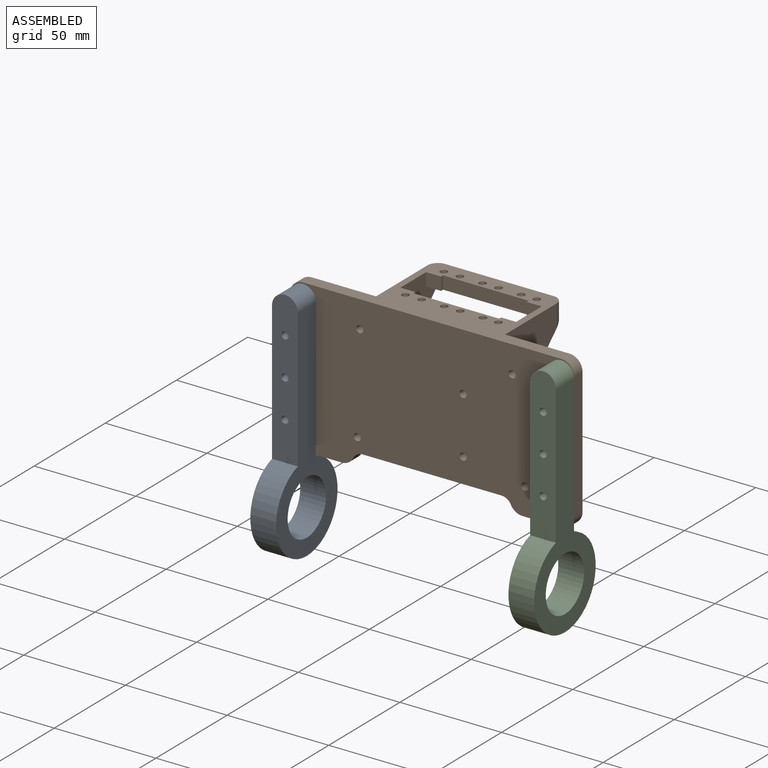
[diagram: assembled view]
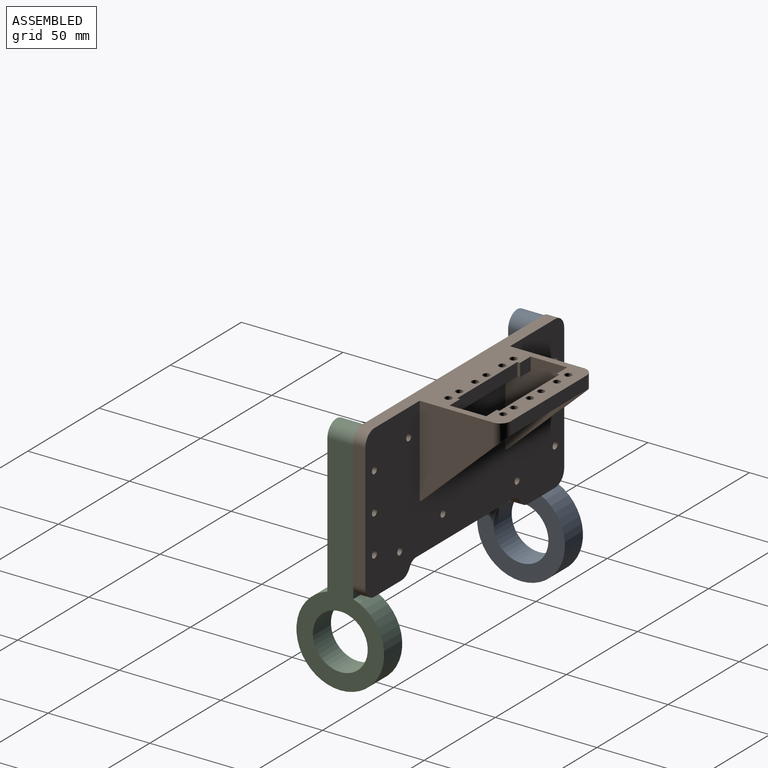
[diagram: assembled view, second angle]
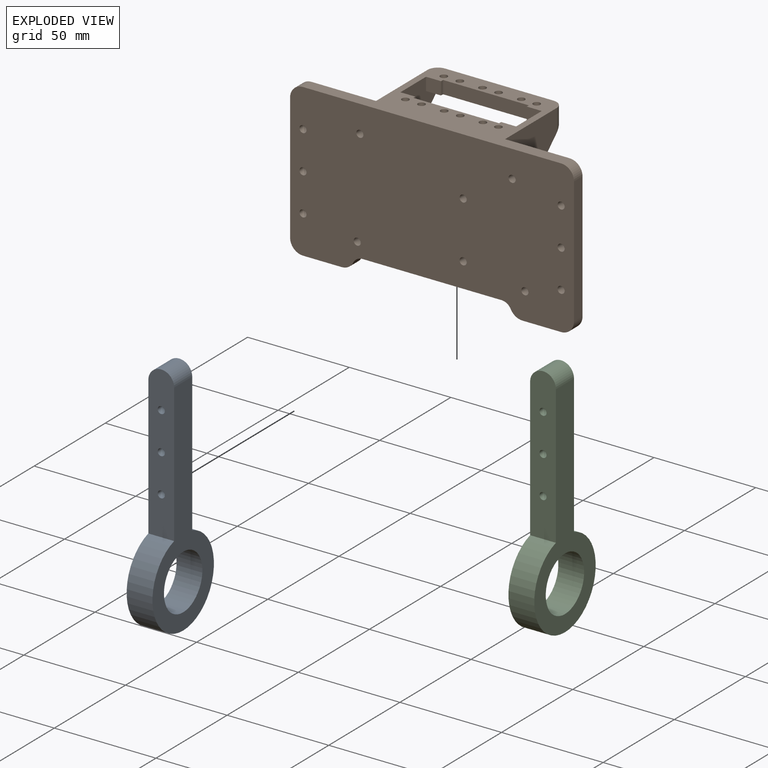
[diagram: exploded view]
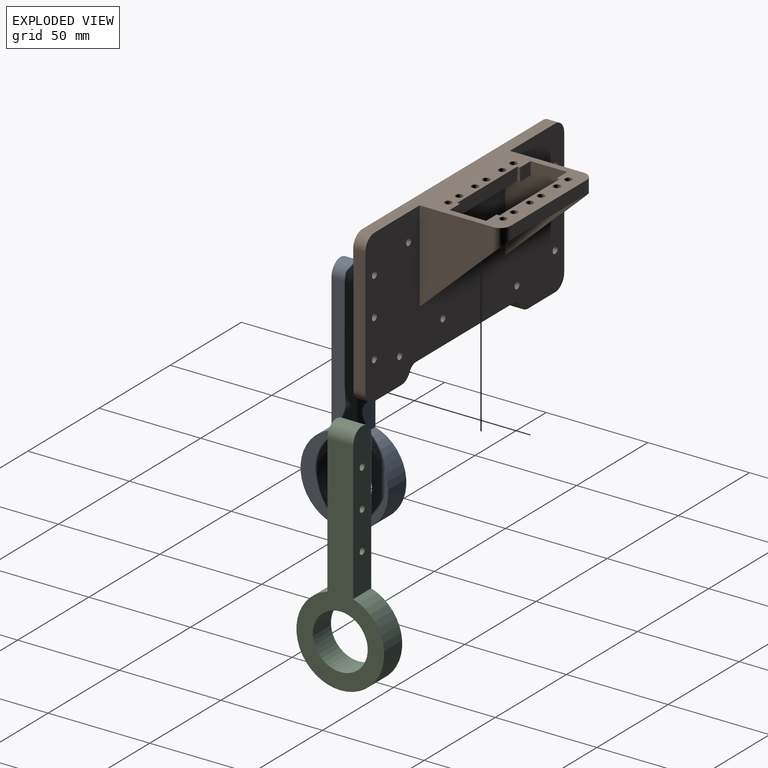
[diagram: exploded view, second angle]
ASSEMBLY  parts=3 mates=2
PART A: 10 faces, bbox 116.8x43.2x12.7 mm
  f0: cylinder r=21.59mm len=43.18mm, axis (0,0,-1), area 1559.1mm2, adj f1,f2,f3,f4
  f1: plane 74.62x12.7mm, normal (0,-1,0), area 901.8mm2, adj f0,f3,f4,f6,f7,f8,f9
  f2: plane 74.62x12.7mm, normal (0,1,0), area 901.8mm2, adj f0,f3,f4,f6,f7,f8,f9
  f3: plane 110.49x43.18mm, normal (0,0,1), area 1750.7mm2, adj f0,f1,f2,f5,f9
  f4: plane 110.49x43.18mm, normal (0,0,-1), area 1750.7mm2, adj f0,f1,f2,f5,f9
  f5: cylinder r=13.5mm len=27mm, axis (0,0,1), area 1077.3mm2, adj f3,f4
  f6: cylinder r=1.74mm len=12.7mm, axis (0,-1,0), area 138.8mm2, adj f1,f2
  f7: cylinder r=1.74mm len=12.7mm, axis (0,-1,0), area 138.8mm2, adj f1,f2
  f8: cylinder r=1.74mm len=12.7mm, axis (0,-1,0), area 138.8mm2, adj f1,f2
  f9: cylinder r=6.35mm len=12.7mm, axis (0,-1,0), area 253.4mm2, adj f1,f2,f3,f4
PART B: 63 faces, bbox 139.7x47.3x75 mm
  f0: plane 19.05x6mm, normal (0,0,-1), area 114.3mm2, adj f1,f14,f56,f58
  f1: plane 139.7x75mm, normal (0,1,0), area 9177.8mm2, adj f0,f3,f4,f5,f6,f7,f8,f9
  f2: plane 56.92x10.82mm, normal (0,0,-1), area 499.1mm2, adj f17,f18,f24,f25,f26,f27,f28,f29
  f3: plane 56.92x12.45mm, normal (0,0,-1), area 592mm2, adj f1,f18,f19,f20,f21,f22,f23,f24
  f4: plane 127x47.28mm, normal (0,0,1), area 2113.9mm2, adj f1,f14,f15,f16,f17,f18,f19,f20
  f5: plane 62.3x6mm, normal (-1,0,0), area 373.8mm2, adj f1,f14,f57,f58
  f6: plane 19.05x6mm, normal (0,0,-1), area 114.3mm2, adj f1,f14,f55,f59
  f7: cylinder r=1.75mm len=6mm, axis (0,1,0), area 66mm2, adj f1,f14
  f8: cylinder r=1.75mm len=6mm, axis (0,1,0), area 66mm2, adj f1,f14
  f9: cylinder r=1.75mm len=6mm, axis (0,1,0), area 66mm2, adj f1,f14
  f10: cylinder r=1.75mm len=6mm, axis (0,1,0), area 66mm2, adj f1,f14
  f11: cylinder r=1.75mm len=6mm, axis (0,1,0), area 66mm2, adj f1,f14
  f12: plane 62.3x6mm, normal (1,0,0), area 373.8mm2, adj f1,f14,f59,f60
  f13: cylinder r=1.75mm len=6mm, axis (0,1,0), area 66mm2, adj f1,f14
  f14: plane 139.7x75mm, normal (0,-1,0), area 9831.7mm2, adj f0,f4,f5,f6,f7,f8,f9,f10
  f15: plane 44.45x36.2mm, normal (1,0,0), area 1016.1mm2, adj f1,f4,f42,f44,f46
  f16: plane 44.45x36.2mm, normal (-1,0,0), area 1016.1mm2, adj f1,f4,f43,f45,f47
  f17: plane 53.34x6.35mm, normal (0,1,0), area 338.7mm2, adj f2,f4,f46,f47
  f18: plane 44.45x40.95mm, normal (1,0,0), area 912.6mm2, adj f1,f2,f3,f4,f19,f29,f43,f45
  f19: plane 7.38x6.35mm, normal (0,1,0), area 46.9mm2, adj f3,f4,f18,f20
  f20: plane 6.35x1.41mm, normal (1,0,0), area 9mm2, adj f3,f4,f19,f21
  f21: plane 42.16x6.35mm, normal (0,1,0), area 267.7mm2, adj f3,f4,f20,f22
  f22: plane 6.35x1.41mm, normal (-1,0,0), area 9mm2, adj f3,f4,f21,f23
  f23: plane 7.38x6.35mm, normal (0,1,0), area 46.9mm2, adj f3,f4,f22,f24
  f24: plane 44.45x40.95mm, normal (-1,0,0), area 912.6mm2, adj f1,f2,f3,f4,f23,f25,f42,f44
  f25: plane 7.38x6.35mm, normal (0,-1,0), area 46.9mm2, adj f2,f4,f24,f26
  f26: plane 6.35x1.41mm, normal (-1,0,0), area 9mm2, adj f2,f4,f25,f27
  f27: plane 42.16x6.35mm, normal (0,-1,0), area 267.7mm2, adj f2,f4,f26,f28
  f28: plane 6.35x1.41mm, normal (1,0,0), area 9mm2, adj f2,f4,f27,f29
  f29: plane 7.38x6.35mm, normal (0,-1,0), area 46.9mm2, adj f2,f4,f18,f28
  f30: cylinder r=1.74mm len=6.35mm, axis (0,0,1), area 69.4mm2, adj f3,f4
  f31: cylinder r=1.74mm len=6.35mm, axis (0,0,1), area 69.4mm2, adj f3,f4
  f32: cylinder r=1.74mm len=6.35mm, axis (0,0,1), area 69.4mm2, adj f3,f4
  f33: cylinder r=1.74mm len=6.35mm, axis (0,0,1), area 69.4mm2, adj f3,f4
  f34: cylinder r=1.74mm len=6.35mm, axis (0,0,1), area 69.4mm2, adj f2,f4
  f35: cylinder r=1.74mm len=6.35mm, axis (0,0,1), area 69.4mm2, adj f2,f4
  f36: cylinder r=1.74mm len=6.35mm, axis (0,0,1), area 69.4mm2, adj f2,f4
  f37: cylinder r=1.74mm len=6.35mm, axis (0,0,1), area 69.4mm2, adj f2,f4
  f38: cylinder r=1.74mm len=6.35mm, axis (0,0,1), area 69.4mm2, adj f2,f4
  f39: cylinder r=1.74mm len=6.35mm, axis (0,0,1), area 69.4mm2, adj f2,f4
  f40: cylinder r=1.74mm len=6.35mm, axis (0,0,1), area 69.4mm2, adj f3,f4
  f41: cylinder r=1.74mm len=6.35mm, axis (0,0,1), area 69.4mm2, adj f3,f4
  f42: plane 3.29x0.64mm, normal (0,0,-1), area 2.1mm2, adj f1,f15,f24,f44
  f43: plane 3.29x0.64mm, normal (0,0,-1), area 2.1mm2, adj f1,f16,f18,f45
  f44: plane 40.31x37.79mm, normal (0,0.68,-0.73), area 175.9mm2, adj f15,f24,f42,f46
  f45: plane 40.31x37.79mm, normal (0,0.68,-0.73), area 175.9mm2, adj f16,f18,f43,f47
  f46: cylinder r=5.08mm len=11.11mm, axis (0,0,1), area 64.3mm2, adj f2,f4,f15,f17,f24,f44
  f47: cylinder r=5.08mm len=11.11mm, axis (0,0,-1), area 64.3mm2, adj f2,f4,f16,f17,f18,f45
  f48: cylinder r=1.74mm len=6mm, axis (0,1,0), area 65.6mm2, adj f1,f14
  f49: cylinder r=1.74mm len=6mm, axis (0,1,0), area 65.6mm2, adj f1,f14
  f50: cylinder r=1.74mm len=6mm, axis (0,1,0), area 65.6mm2, adj f1,f14
  f51: cylinder r=1.74mm len=6mm, axis (0,1,0), area 65.6mm2, adj f1,f14
  f52: cylinder r=1.74mm len=6mm, axis (0,1,0), area 65.6mm2, adj f1,f14
  f53: cylinder r=1.74mm len=6mm, axis (0,1,0), area 65.6mm2, adj f1,f14
  f54: plane 68.42x6mm, normal (0,0,-1), area 410.5mm2, adj f1,f14,f61,f62
  f55: cylinder r=6.35mm len=6mm, axis (0,1,0), area 42.3mm2, adj f1,f6,f14,f61
  f56: cylinder r=6.35mm len=6mm, axis (0,-1,0), area 42.3mm2, adj f0,f1,f14,f62
  f57: cylinder r=6.35mm len=6.35mm, axis (0,-1,0), area 59.8mm2, adj f1,f4,f5,f14
  f58: cylinder r=6.35mm len=6.35mm, axis (0,1,0), area 59.8mm2, adj f0,f1,f5,f14
  f59: cylinder r=6.35mm len=6.35mm, axis (0,-1,0), area 59.8mm2, adj f1,f6,f12,f14
  f60: cylinder r=6.35mm len=6.35mm, axis (0,1,0), area 59.8mm2, adj f1,f4,f12,f14
  f61: cylinder r=5.08mm len=6mm, axis (0,1,0), area 33.8mm2, adj f1,f14,f54,f55
  f62: cylinder r=5.08mm len=6mm, axis (0,-1,0), area 33.8mm2, adj f1,f14,f54,f56
PART C: same geometry as A
PLACE A rot(axis=(0,-1,0),90deg) t=(-57.15,-12.35,0)mm
PLACE B at identity
PLACE C rot(axis=(0,-1,0),90deg) t=(69.85,-12.35,0)mm
MATE fastened A.f6 <-> B.f51  axis (0,1,0) through (-63.5,-6,18.75)mm
MATE fastened C.f6 <-> B.f48  axis (0,1,0) through (63.5,-6,18.75)mm
